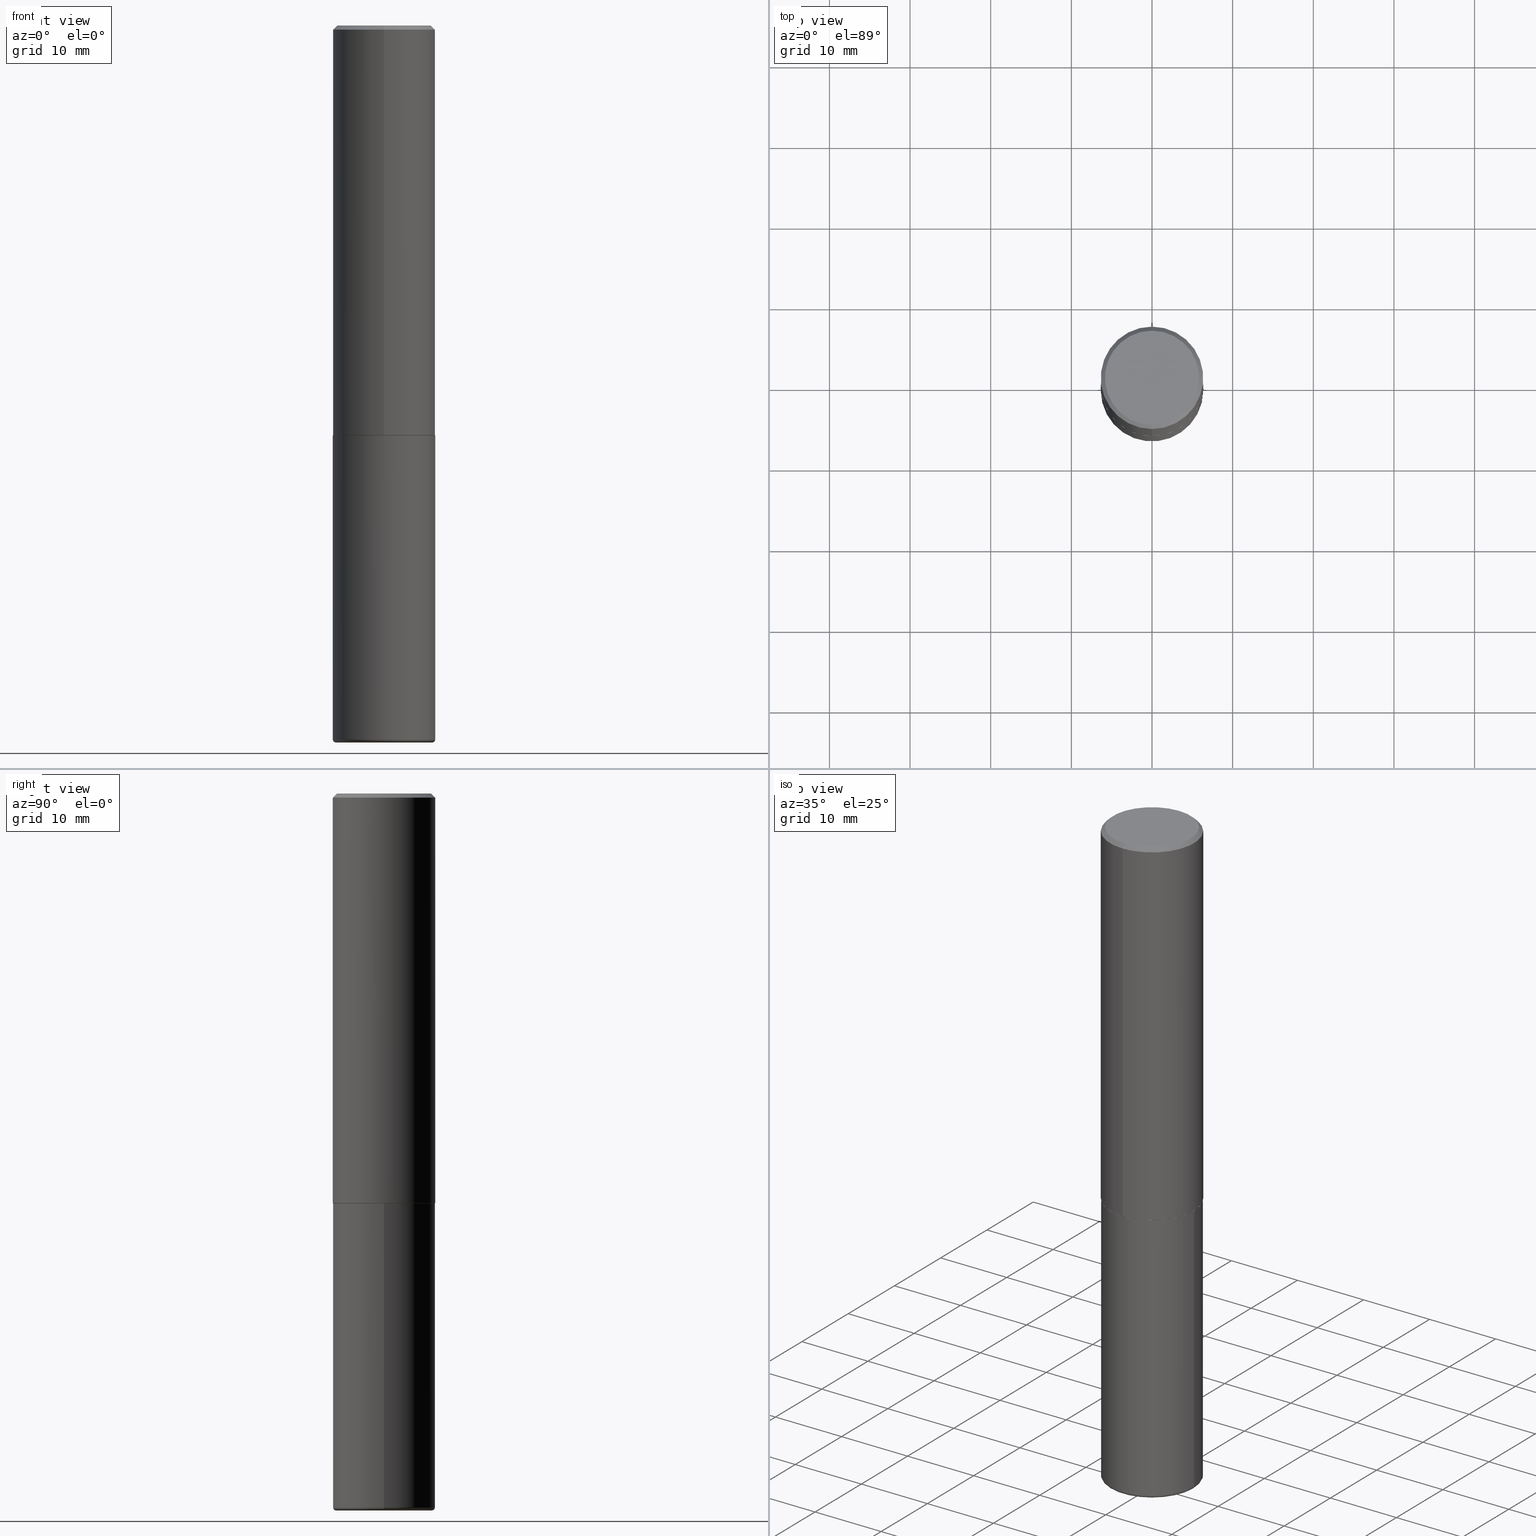
[diagram: canonical four-view strip — front | top / right | iso, engineering-drawing reading convention]
A machine part, canonical four-view strip (front | top / right | iso — engineering-drawing reading convention). The complete STEP part file that produces these views, byte-faithful:
ISO-10303-21;
HEADER;
FILE_DESCRIPTION (( 'STEP AP203' ),
    '1' );
FILE_NAME ('37525.STEP',
    '2024-03-02T03:19:09',
    ( '' ),
    ( '' ),
    'SwSTEP 2.0',
    'SolidWorks 2023',
    '' );
FILE_SCHEMA (( 'CONFIG_CONTROL_DESIGN' ));
ENDSEC;

DATA;
#1 = ADVANCED_FACE ( 'NONE', ( #61 ), #253, .T. ) ;
#2 = AXIS2_PLACEMENT_3D ( 'NONE', #230, #325, #35 ) ;
#3 = DIRECTION ( 'NONE',  ( -2.445737183286911680E-29, 3.491097007558327602E-15, 1.000000000000000000 ) ) ;
#4 = CYLINDRICAL_SURFACE ( 'NONE', #359, 0.2500000000000000000 ) ;
#5 = DIRECTION ( 'NONE',  ( 1.000000000000000000, -6.982962677686262766E-15, 0.000000000000000000 ) ) ;
#6 = DIRECTION ( 'NONE',  ( -6.982962677686266711E-15, -1.000000000000000000, 3.491097007558327996E-15 ) ) ;
#7 = VERTEX_POINT ( 'NONE', #361 ) ;
#8 = DATE_AND_TIME ( #343, #201 ) ;
#9 = LINE ( 'NONE', #385, #309 ) ;
#10 = LOCAL_TIME ( 22, 19, 9.000000000000000000, #53 ) ;
#11 = VECTOR ( 'NONE', #202, 39.37007874015748143 ) ;
#12 = VECTOR ( 'NONE', #369, 39.37007874015748143 ) ;
#13 = ORIENTED_EDGE ( 'NONE', *, *, #240, .F. ) ;
#14 = ADVANCED_FACE ( 'NONE', ( #299 ), #231, .T. ) ;
#15 = APPLICATION_PROTOCOL_DEFINITION ( 'international standard', 'config_control_design', 1994, #96 ) ;
#16 = DIRECTION ( 'NONE',  ( -6.982962677686265922E-15, -1.000000000000000000, 3.483106191921935554E-15 ) ) ;
#17 = ORIENTED_EDGE ( 'NONE', *, *, #108, .T. ) ;
#18 = PLANE ( 'NONE',  #105 ) ;
#19 = ORIENTED_EDGE ( 'NONE', *, *, #113, .T. ) ;
#20 = APPROVAL_PERSON_ORGANIZATION ( #118, #312, #144 ) ;
#21 =( NAMED_UNIT ( * ) PLANE_ANGLE_UNIT ( ) SI_UNIT ( $, .RADIAN. ) );
#22 = ORIENTED_EDGE ( 'NONE', *, *, #139, .F. ) ;
#23 = ORIENTED_EDGE ( 'NONE', *, *, #103, .F. ) ;
#24 = LENGTH_MEASURE_WITH_UNIT ( LENGTH_MEASURE( 0.02539999999999999897 ), #315 );
#25 = CARTESIAN_POINT ( 'NONE',  ( 1.675911042644703774E-15, 0.2299999999999999822, -8.286517828745257562E-16 ) ) ;
#26 = ORIENTED_EDGE ( 'NONE', *, *, #386, .T. ) ;
#27 = FACE_OUTER_BOUND ( 'NONE', #305, .T. ) ;
#28 = EDGE_LOOP ( 'NONE', ( #120, #82, #318, #346 ) ) ;
#29 = CC_DESIGN_PERSON_AND_ORGANIZATION_ASSIGNMENT ( #300, #264, ( #329 ) ) ;
#30 = AXIS2_PLACEMENT_3D ( 'NONE', #32, #40, #301 ) ;
#31 = PERSON_AND_ORGANIZATION ( #297, #164 ) ;
#32 = CARTESIAN_POINT ( 'NONE',  ( 8.522458789555200771E-29, -1.216781246586836108E-14, -3.484999999999999432 ) ) ;
#33 = FACE_OUTER_BOUND ( 'NONE', #286, .T. ) ;
#34 = EDGE_CURVE ( 'NONE', #376, #250, #302, .T. ) ;
#35 = DIRECTION ( 'NONE',  ( -6.982962677686265133E-15, -1.000000000000000000, 3.291383124896702687E-15 ) ) ;
#36 = DIRECTION ( 'NONE',  ( -2.445737183286911680E-29, 3.491097007558327602E-15, 1.000000000000000000 ) ) ;
#37 = CARTESIAN_POINT ( 'NONE',  ( 8.522458789555200771E-29, -1.216781246586836108E-14, -3.484999999999999432 ) ) ;
#38 = CIRCLE ( 'NONE', #74, 0.2299999999999999822 ) ;
#39 = FACE_OUTER_BOUND ( 'NONE', #28, .T. ) ;
#40 = DIRECTION ( 'NONE',  ( -2.445468806185136597E-29, 3.491481338843145583E-15, 1.000000000000000000 ) ) ;
#41 = CARTESIAN_POINT ( 'NONE',  ( 4.891474366573836672E-31, -6.982194015116674235E-17, -0.02000000000000005593 ) ) ;
#42 = PLANE ( 'NONE',  #56 ) ;
#43 = CIRCLE ( 'NONE', #2, 0.2489999999999999991 ) ;
#44 = ORIENTED_EDGE ( 'NONE', *, *, #169, .F. ) ;
#45 = APPROVAL_PERSON_ORGANIZATION ( #358, #371, #415 ) ;
#46 = ORIENTED_EDGE ( 'NONE', *, *, #103, .T. ) ;
#47 = CIRCLE ( 'NONE', #170, 0.2500000000000000000 ) ;
#48 = AXIS2_PLACEMENT_3D ( 'NONE', #37, #298, #5 ) ;
#49 = EDGE_CURVE ( 'NONE', #247, #376, #47, .T. ) ;
#50 = APPLICATION_PROTOCOL_DEFINITION ( 'international standard', 'config_control_design', 1994, #348 ) ;
#51 = PERSON_AND_ORGANIZATION ( #297, #164 ) ;
#52 = ORIENTED_EDGE ( 'NONE', *, *, #380, .T. ) ;
#53 = COORDINATED_UNIVERSAL_TIME_OFFSET ( 5, 0, .BEHIND. ) ;
#54 = VERTEX_POINT ( 'NONE', #418 ) ;
#55 = AXIS2_PLACEMENT_3D ( 'NONE', #259, #165, #6 ) ;
#56 = AXIS2_PLACEMENT_3D ( 'NONE', #174, #364, #75 ) ;
#57 = PLANE ( 'NONE',  #377 ) ;
#58 = ORIENTED_EDGE ( 'NONE', *, *, #380, .F. ) ;
#59 = PERSON_AND_ORGANIZATION_ROLE ( 'design_owner' ) ;
#60 = APPROVAL_STATUS ( 'not_yet_approved' ) ;
#61 = FACE_OUTER_BOUND ( 'NONE', #134, .T. ) ;
#62 = CARTESIAN_POINT ( 'NONE',  ( 4.889028629390535480E-29, -6.978702918109095527E-15, -1.998999999999999666 ) ) ;
#63 = ORIENTED_EDGE ( 'NONE', *, *, #113, .F. ) ;
#64 = VECTOR ( 'NONE', #260, 39.37007874015748143 ) ;
#65 = CC_DESIGN_APPROVAL ( #371, ( #329 ) ) ;
#66 = CARTESIAN_POINT ( 'NONE',  ( 4.890937612370272633E-29, -6.982962677686290376E-15, -1.999999999999999778 ) ) ;
#67 = EDGE_CURVE ( 'NONE', #223, #342, #199, .T. ) ;
#68 = DIRECTION ( 'NONE',  ( -6.982962677686265922E-15, -1.000000000000000000, 3.491097007558327207E-15 ) ) ;
#69 = CARTESIAN_POINT ( 'NONE',  ( 0.000000000000000000, 0.000000000000000000, 0.000000000000000000 ) ) ;
#70 = DIRECTION ( 'NONE',  ( -6.982962677686265133E-15, -1.000000000000000000, 3.291383124896702687E-15 ) ) ;
#71 = DIRECTION ( 'NONE',  ( 6.982962677686265922E-15, 1.000000000000000000, -3.483106191921935554E-15 ) ) ;
#72 = DATE_TIME_ROLE ( 'creation_date' ) ;
#73 = DIRECTION ( 'NONE',  ( -2.445737183286911680E-29, 3.491097007558327602E-15, 1.000000000000000000 ) ) ;
#74 = AXIS2_PLACEMENT_3D ( 'NONE', #185, #284, #367 ) ;
#75 = DIRECTION ( 'NONE',  ( 6.982962677686265922E-15, 1.000000000000000000, -3.491097007558327602E-15 ) ) ;
#76 = EDGE_CURVE ( 'NONE', #85, #342, #9, .T. ) ;
#77 = CIRCLE ( 'NONE', #267, 0.2500000000000002776 ) ;
#78 = EDGE_CURVE ( 'NONE', #413, #407, #43, .T. ) ;
#79 = CARTESIAN_POINT ( 'NONE',  ( 0.2499999999999999167, -1.391355313528992618E-14, -3.484999999999999432 ) ) ;
#80 = DIRECTION ( 'NONE',  ( 2.445737183286911680E-29, -3.491097007558327602E-15, -1.000000000000000000 ) ) ;
#81 = DIRECTION ( 'NONE',  ( -1.000000000000000000, 6.982962677686265922E-15, -4.876176775795935793E-29 ) ) ;
#82 = ORIENTED_EDGE ( 'NONE', *, *, #76, .T. ) ;
#83 = FACE_OUTER_BOUND ( 'NONE', #316, .T. ) ;
#84 = DIRECTION ( 'NONE',  ( -2.445737183286911400E-29, 3.491097007558327602E-15, 1.000000000000000000 ) ) ;
#85 = VERTEX_POINT ( 'NONE', #383 ) ;
#86 = COORDINATED_UNIVERSAL_TIME_OFFSET ( 5, 0, .BEHIND. ) ;
#87 = FACE_OUTER_BOUND ( 'NONE', #393, .T. ) ;
#88 = ORIENTED_EDGE ( 'NONE', *, *, #49, .F. ) ;
#89 = CONICAL_SURFACE ( 'NONE', #304, 0.2489999999999999991, 0.7853981633975507526 ) ;
#90 = CARTESIAN_POINT ( 'NONE',  ( -0.2349999999999999867, -1.049803703683212495E-14, -3.484999999999999432 ) ) ;
#91 = FACE_OUTER_BOUND ( 'NONE', #212, .T. ) ;
#92 = VERTEX_POINT ( 'NONE', #357 ) ;
#93 = ADVANCED_FACE ( 'NONE', ( #167 ), #102, .T. ) ;
#94 = ORIENTED_EDGE ( 'NONE', *, *, #108, .F. ) ;
#95 = ADVANCED_FACE ( 'NONE', ( #33 ), #4, .T. ) ;
#96 = APPLICATION_CONTEXT ( 'configuration controlled 3d designs of mechanical parts and assemblies' ) ;
#97 = DIRECTION ( 'NONE',  ( -2.445468806185136597E-29, 3.491481338843145583E-15, 1.000000000000000000 ) ) ;
#98 = LINE ( 'NONE', #226, #11 ) ;
#99 = AXIS2_PLACEMENT_3D ( 'NONE', #266, #127, #262 ) ;
#100 =( GEOMETRIC_REPRESENTATION_CONTEXT ( 3 ) GLOBAL_UNCERTAINTY_ASSIGNED_CONTEXT ( ( #128 ) ) GLOBAL_UNIT_ASSIGNED_CONTEXT ( ( #337, #21, #347 ) ) REPRESENTATION_CONTEXT ( 'NONE', 'WORKASPACE' ) );
#101 = CARTESIAN_POINT ( 'NONE',  ( 4.891474366573822799E-29, -6.982194015116654415E-15, -1.999999999999999778 ) ) ;
#102 = CYLINDRICAL_SURFACE ( 'NONE', #156, 0.2500000000000001110 ) ;
#103 = EDGE_CURVE ( 'NONE', #407, #413, #176, .T. ) ;
#104 = DIRECTION ( 'NONE',  ( -4.851104656540962697E-15, -0.7071067811865497932, -0.7071067811865451302 ) ) ;
#105 = AXIS2_PLACEMENT_3D ( 'NONE', #404, #213, #372 ) ;
#106 = CARTESIAN_POINT ( 'NONE',  ( 0.000000000000000000, 0.000000000000000000, 0.000000000000000000 ) ) ;
#107 = CC_DESIGN_DATE_AND_TIME_ASSIGNMENT ( #154, #72, ( #333 ) ) ;
#108 = EDGE_CURVE ( 'NONE', #85, #187, #368, .T. ) ;
#109 = ADVANCED_FACE ( 'NONE', ( #39 ), #235, .T. ) ;
#110 = CONICAL_SURFACE ( 'NONE', #234, 0.2500000000000000000, 0.7853981633974481680 ) ;
#111 = ADVANCED_BREP_SHAPE_REPRESENTATION ( '37525', ( #353, #220, #146 ), #100 ) ;
#112 = ORIENTED_EDGE ( 'NONE', *, *, #229, .F. ) ;
#113 = EDGE_CURVE ( 'NONE', #54, #184, #133, .T. ) ;
#114 = AXIS2_PLACEMENT_3D ( 'NONE', #294, #3, #387 ) ;
#115 = EDGE_LOOP ( 'NONE', ( #210, #52, #263, #314 ) ) ;
#116 = ORIENTED_EDGE ( 'NONE', *, *, #291, .F. ) ;
#117 = CARTESIAN_POINT ( 'NONE',  ( 4.891474366573836672E-31, -6.982194015116674235E-17, -0.02000000000000005593 ) ) ;
#118 = PERSON_AND_ORGANIZATION ( #297, #164 ) ;
#119 = EDGE_LOOP ( 'NONE', ( #13, #206 ) ) ;
#120 = ORIENTED_EDGE ( 'NONE', *, *, #362, .T. ) ;
#121 = CIRCLE ( 'NONE', #332, 0.01499999999999987454 ) ;
#122 = DESIGN_CONTEXT ( 'detailed design', #96, 'design' ) ;
#123 = APPROVAL_STATUS ( 'not_yet_approved' ) ;
#124 = CARTESIAN_POINT ( 'NONE',  ( 0.2500000000000000000, -8.728703347107857054E-15, -1.999999999999999778 ) ) ;
#125 = EDGE_CURVE ( 'NONE', #187, #184, #98, .T. ) ;
#126 = DIRECTION ( 'NONE',  ( 2.445737183286911680E-29, -3.491097007558327602E-15, -1.000000000000000000 ) ) ;
#127 = DIRECTION ( 'NONE',  ( -2.445737183286911680E-29, 3.491097007558327602E-15, 1.000000000000000000 ) ) ;
#128 = UNCERTAINTY_MEASURE_WITH_UNIT (LENGTH_MEASURE( 1.000000000000000082E-05 ), #337, 'distance_accuracy_value', 'NONE');
#129 = DIRECTION ( 'NONE',  ( 1.000000000000000000, -6.982962677686266711E-15, 4.883557194083112901E-29 ) ) ;
#130 = LOCAL_TIME ( 22, 19, 9.000000000000000000, #384 ) ;
#131 = DIRECTION ( 'NONE',  ( -2.445468806185136597E-29, 3.491481338843145583E-15, 1.000000000000000000 ) ) ;
#132 = FACE_OUTER_BOUND ( 'NONE', #153, .T. ) ;
#133 = LINE ( 'NONE', #360, #232 ) ;
#134 = EDGE_LOOP ( 'NONE', ( #63, #116, #255, #290 ) ) ;
#135 = DIRECTION ( 'NONE',  ( 1.000000000000000000, -6.982962677686266711E-15, 4.876176775795935793E-29 ) ) ;
#136 = PERSON_AND_ORGANIZATION_ROLE ( 'creator' ) ;
#137 = AXIS2_PLACEMENT_3D ( 'NONE', #41, #179, #16 ) ;
#138 = AXIS2_PLACEMENT_3D ( 'NONE', #140, #84, #287 ) ;
#139 = EDGE_CURVE ( 'NONE', #342, #184, #394, .T. ) ;
#140 = CARTESIAN_POINT ( 'NONE',  ( 4.891474366573822799E-29, -6.982194015116654415E-15, -1.999999999999999778 ) ) ;
#141 = EDGE_LOOP ( 'NONE', ( #352, #409 ) ) ;
#142 = CARTESIAN_POINT ( 'NONE',  ( -0.2500000000000000000, 1.776356839400250465E-15, -1.229733772563726445E-29 ) ) ;
#143 = DIRECTION ( 'NONE',  ( -2.445737183286911680E-29, 3.491097007558327602E-15, 1.000000000000000000 ) ) ;
#144 = APPROVAL_ROLE ( '' ) ;
#145 = AXIS2_PLACEMENT_3D ( 'NONE', #261, #328, #392 ) ;
#146 = AXIS2_PLACEMENT_3D ( 'NONE', #188, #397, #398 ) ;
#147 = EDGE_CURVE ( 'NONE', #184, #342, #390, .T. ) ;
#148 = EDGE_LOOP ( 'NONE', ( #381, #350, #373, #88 ) ) ;
#149 = APPROVAL_ROLE ( '' ) ;
#150 = DIRECTION ( 'NONE',  ( -6.982962677686266711E-15, -1.000000000000000000, 3.491481338843145583E-15 ) ) ;
#151 = ORIENTED_EDGE ( 'NONE', *, *, #306, .F. ) ;
#152 = DIRECTION ( 'NONE',  ( -2.445468806185136597E-29, 3.491481338843145583E-15, 1.000000000000000000 ) ) ;
#153 = EDGE_LOOP ( 'NONE', ( #112, #46, #400, #94 ) ) ;
#154 = DATE_AND_TIME ( #159, #242 ) ;
#155 = FACE_OUTER_BOUND ( 'NONE', #119, .T. ) ;
#156 = AXIS2_PLACEMENT_3D ( 'NONE', #69, #36, #162 ) ;
#157 = ORIENTED_EDGE ( 'NONE', *, *, #240, .T. ) ;
#158 = AXIS2_PLACEMENT_3D ( 'NONE', #209, #73, #68 ) ;
#159 = CALENDAR_DATE ( 2024, 1, 3 ) ;
#160 = CC_DESIGN_PERSON_AND_ORGANIZATION_ASSIGNMENT ( #31, #355, ( #333 ) ) ;
#161 = DIRECTION ( 'NONE',  ( -2.445468806185136597E-29, 3.491481338843145583E-15, 1.000000000000000000 ) ) ;
#162 = DIRECTION ( 'NONE',  ( -6.982962677686266711E-15, -1.000000000000000000, 3.491097007558327996E-15 ) ) ;
#163 = AXIS2_PLACEMENT_3D ( 'NONE', #193, #131, #135 ) ;
#164 = ORGANIZATION ( 'UNSPECIFIED', 'UNSPECIFIED', '' ) ;
#165 = DIRECTION ( 'NONE',  ( -2.445737183286911680E-29, 3.491097007558327602E-15, 1.000000000000000000 ) ) ;
#166 = ORIENTED_EDGE ( 'NONE', *, *, #229, .T. ) ;
#167 = FACE_OUTER_BOUND ( 'NONE', #244, .T. ) ;
#168 = EDGE_CURVE ( 'NONE', #7, #92, #192, .T. ) ;
#169 = EDGE_CURVE ( 'NONE', #92, #376, #323, .T. ) ;
#170 = AXIS2_PLACEMENT_3D ( 'NONE', #388, #293, #228 ) ;
#171 = APPROVAL_DATE_TIME ( #224, #371 ) ;
#172 = CC_DESIGN_APPROVAL ( #312, ( #205 ) ) ;
#173 = ORIENTED_EDGE ( 'NONE', *, *, #227, .F. ) ;
#174 = CARTESIAN_POINT ( 'NONE',  ( 1.606081415867841067E-15, 0.2299999999999999822, -8.158020473064706174E-16 ) ) ;
#175 = ADVANCED_FACE ( 'NONE', ( #87 ), #243, .F. ) ;
#176 = CIRCLE ( 'NONE', #99, 0.2489999999999999991 ) ;
#177 = AXIS2_PLACEMENT_3D ( 'NONE', #335, #382, #129 ) ;
#178 = CARTESIAN_POINT ( 'NONE',  ( 1.772804125721499659E-15, 0.2489999999999930325, -2.000000000000000444 ) ) ;
#179 = DIRECTION ( 'NONE',  ( -2.445737183286911680E-29, 3.491097007558327602E-15, 1.000000000000000000 ) ) ;
#180 = EDGE_LOOP ( 'NONE', ( #320, #166, #215, #173 ) ) ;
#181 = CALENDAR_DATE ( 2024, 1, 3 ) ;
#182 = DIRECTION ( 'NONE',  ( -2.445468806185136597E-29, 3.491481338843145583E-15, 1.000000000000000000 ) ) ;
#183 = CIRCLE ( 'NONE', #158, 0.2299999999999999822 ) ;
#184 = VERTEX_POINT ( 'NONE', #279 ) ;
#185 = CARTESIAN_POINT ( 'NONE',  ( 6.285415214839433991E-46, -8.971934677910720830E-32, -2.569947113611056727E-17 ) ) ;
#186 = DIRECTION ( 'NONE',  ( 2.438088387897960049E-29, -3.491481338843145188E-15, -1.000000000000000000 ) ) ;
#187 = VERTEX_POINT ( 'NONE', #217 ) ;
#188 = CARTESIAN_POINT ( 'NONE',  ( 0.000000000000000000, 0.000000000000000000, 0.000000000000000000 ) ) ;
#189 = COORDINATED_UNIVERSAL_TIME_OFFSET ( 5, 0, .BEHIND. ) ;
#190 = CARTESIAN_POINT ( 'NONE',  ( 4.891474366573836672E-31, -6.982194015116674235E-17, -0.02000000000000005593 ) ) ;
#191 = DIRECTION ( 'NONE',  ( -2.445468806185136597E-29, 3.491481338843145583E-15, 1.000000000000000000 ) ) ;
#192 = CIRCLE ( 'NONE', #241, 0.2349999999999999867 ) ;
#193 = CARTESIAN_POINT ( 'NONE',  ( 0.000000000000000000, 0.000000000000000000, 0.000000000000000000 ) ) ;
#194 = APPROVAL_PERSON_ORGANIZATION ( #51, #265, #149 ) ;
#195 = CC_DESIGN_PERSON_AND_ORGANIZATION_ASSIGNMENT ( #270, #136, ( #329 ) ) ;
#196 = DIRECTION ( 'NONE',  ( -2.445737183286911680E-29, 3.491097007558327602E-15, 1.000000000000000000 ) ) ;
#197 = PRODUCT ( '37525', '37525', '', ( #246 ) ) ;
#198 = CARTESIAN_POINT ( 'NONE',  ( 1.745740669421566875E-15, 0.2499999999999999167, -0.02000000000000092676 ) ) ;
#199 = LINE ( 'NONE', #198, #327 ) ;
#200 = CLOSED_SHELL ( 'NONE', ( #14, #272, #374, #95, #340, #236 ) ) ;
#201 = LOCAL_TIME ( 22, 19, 9.000000000000000000, #86 ) ;
#202 = DIRECTION ( 'NONE',  ( -2.445737183286911680E-29, 3.491097007558327602E-15, 1.000000000000000000 ) ) ;
#203 = ADVANCED_FACE ( 'NONE', ( #27 ), #110, .T. ) ;
#204 = DIRECTION ( 'NONE',  ( -6.982962677686265922E-15, -1.000000000000000000, 3.278217592397112312E-15 ) ) ;
#205 = SECURITY_CLASSIFICATION ( '', '', #275 ) ;
#206 = ORIENTED_EDGE ( 'NONE', *, *, #168, .F. ) ;
#207 = AXIS2_PLACEMENT_3D ( 'NONE', #117, #143, #341 ) ;
#208 = CARTESIAN_POINT ( 'NONE',  ( -1.738757706743831162E-15, -0.2490000000000069658, -1.999999999999998890 ) ) ;
#209 = CARTESIAN_POINT ( 'NONE',  ( 6.285415214839433991E-46, -8.971934677910720830E-32, -2.569947113611056727E-17 ) ) ;
#210 = ORIENTED_EDGE ( 'NONE', *, *, #330, .T. ) ;
#211 = CARTESIAN_POINT ( 'NONE',  ( 1.769251412042698169E-15, 0.2489999999999930325, -2.000000000000000444 ) ) ;
#212 = EDGE_LOOP ( 'NONE', ( #157, #26, #338, #44 ) ) ;
#213 = DIRECTION ( 'NONE',  ( 2.438088387897960049E-29, -3.491481338843145188E-15, -1.000000000000000000 ) ) ;
#214 = DIRECTION ( 'NONE',  ( 6.982962677686265922E-15, 1.000000000000000000, -3.483106191921935554E-15 ) ) ;
#215 = ORIENTED_EDGE ( 'NONE', *, *, #362, .F. ) ;
#216 = DIRECTION ( 'NONE',  ( -1.000000000000000000, 7.105427357601050768E-15, 0.000000000000000000 ) ) ;
#217 = CARTESIAN_POINT ( 'NONE',  ( -1.745740669421519543E-15, -0.2500000000000072164, -1.998999999999998778 ) ) ;
#218 = AXIS2_PLACEMENT_3D ( 'NONE', #317, #152, #285 ) ;
#219 = VERTEX_POINT ( 'NONE', #313 ) ;
#220 = MANIFOLD_SOLID_BREP ( 'Body-Move/Copy2[2]', #365 ) ;
#221 = ORIENTED_EDGE ( 'NONE', *, *, #49, .T. ) ;
#222 = CARTESIAN_POINT ( 'NONE',  ( 4.890937612370272633E-29, -6.982962677686290376E-15, -1.999999999999999778 ) ) ;
#223 = VERTEX_POINT ( 'NONE', #25 ) ;
#224 = DATE_AND_TIME ( #256, #130 ) ;
#225 = FACE_OUTER_BOUND ( 'NONE', #148, .T. ) ;
#226 = CARTESIAN_POINT ( 'NONE',  ( -1.745740669421567467E-15, -0.2500000000000001110, 8.727742518895823935E-16 ) ) ;
#227 = EDGE_CURVE ( 'NONE', #413, #187, #276, .T. ) ;
#228 = DIRECTION ( 'NONE',  ( 1.000000000000000000, -6.982962677686262766E-15, 0.000000000000000000 ) ) ;
#229 = EDGE_CURVE ( 'NONE', #407, #85, #345, .T. ) ;
#230 = CARTESIAN_POINT ( 'NONE',  ( 4.891474366573822799E-29, -6.982194015116654415E-15, -1.999999999999999778 ) ) ;
#231 = CYLINDRICAL_SURFACE ( 'NONE', #163, 0.2500000000000000000 ) ;
#232 = VECTOR ( 'NONE', #104, 39.37007874015748854 ) ;
#233 = CONICAL_SURFACE ( 'NONE', #114, 0.2489999999999999991, 0.7853981633975507526 ) ;
#234 = AXIS2_PLACEMENT_3D ( 'NONE', #412, #80, #214 ) ;
#235 = CYLINDRICAL_SURFACE ( 'NONE', #55, 0.2500000000000001110 ) ;
#236 = ADVANCED_FACE ( 'NONE', ( #155 ), #57, .T. ) ;
#237 = AXIS2_PLACEMENT_3D ( 'NONE', #190, #126, #71 ) ;
#238 = AXIS2_PLACEMENT_3D ( 'NONE', #66, #191, #257 ) ;
#239 = DIRECTION ( 'NONE',  ( 7.105427357601001859E-15, 1.000000000000000000, -3.491481338843145583E-15 ) ) ;
#240 = EDGE_CURVE ( 'NONE', #92, #7, #395, .T. ) ;
#241 = AXIS2_PLACEMENT_3D ( 'NONE', #319, #182, #375 ) ;
#242 = LOCAL_TIME ( 22, 19, 9.000000000000000000, #326 ) ;
#243 = PLANE ( 'NONE',  #138 ) ;
#244 = EDGE_LOOP ( 'NONE', ( #258, #17, #403, #22 ) ) ;
#245 = PERSON_AND_ORGANIZATION ( #297, #164 ) ;
#246 = MECHANICAL_CONTEXT ( 'NONE', #348, 'mechanical' ) ;
#247 = VERTEX_POINT ( 'NONE', #408 ) ;
#248 = CARTESIAN_POINT ( 'NONE',  ( 0.2349999999999999867, -1.380880869512463439E-14, -3.484999999999999432 ) ) ;
#249 = CALENDAR_DATE ( 2024, 1, 3 ) ;
#250 = VERTEX_POINT ( 'NONE', #124 ) ;
#251 = PERSON_AND_ORGANIZATION_ROLE ( 'classification_officer' ) ;
#252 = LINE ( 'NONE', #142, #334 ) ;
#253 = CONICAL_SURFACE ( 'NONE', #237, 0.2500000000000000000, 0.7853981633974481680 ) ;
#254 = VECTOR ( 'NONE', #378, 39.37007874015748143 ) ;
#255 = ORIENTED_EDGE ( 'NONE', *, *, #67, .T. ) ;
#256 = CALENDAR_DATE ( 2024, 1, 3 ) ;
#257 = DIRECTION ( 'NONE',  ( 1.000000000000000000, -6.982962677686266711E-15, 0.000000000000000000 ) ) ;
#258 = ORIENTED_EDGE ( 'NONE', *, *, #76, .F. ) ;
#259 = CARTESIAN_POINT ( 'NONE',  ( 0.000000000000000000, 0.000000000000000000, 0.000000000000000000 ) ) ;
#260 = DIRECTION ( 'NONE',  ( -2.445468806185136877E-29, 3.491481338843145188E-15, 1.000000000000000000 ) ) ;
#261 = CARTESIAN_POINT ( 'NONE',  ( 4.889028629390535480E-29, -6.978702918109095527E-15, -1.998999999999999666 ) ) ;
#262 = DIRECTION ( 'NONE',  ( -6.982962677686265133E-15, -1.000000000000000000, 3.291383124896702687E-15 ) ) ;
#263 = ORIENTED_EDGE ( 'NONE', *, *, #349, .F. ) ;
#264 = PERSON_AND_ORGANIZATION_ROLE ( 'design_supplier' ) ;
#265 = APPROVAL ( #339, 'UNSPECIFIED' ) ;
#266 = CARTESIAN_POINT ( 'NONE',  ( 4.891474366573822799E-29, -6.982194015116654415E-15, -1.999999999999999778 ) ) ;
#267 = AXIS2_PLACEMENT_3D ( 'NONE', #62, #196, #204 ) ;
#268 = CC_DESIGN_DATE_AND_TIME_ASSIGNMENT ( #8, #303, ( #205 ) ) ;
#269 = ORIENTED_EDGE ( 'NONE', *, *, #67, .F. ) ;
#270 = PERSON_AND_ORGANIZATION ( #297, #164 ) ;
#271 = CC_DESIGN_APPROVAL ( #265, ( #333 ) ) ;
#272 = ADVANCED_FACE ( 'NONE', ( #91 ), #410, .T. ) ;
#273 = ORIENTED_EDGE ( 'NONE', *, *, #306, .T. ) ;
#274 = DIMENSIONAL_EXPONENTS ( 1.000000000000000000, 0.000000000000000000, 0.000000000000000000, 0.000000000000000000, 0.000000000000000000, 0.000000000000000000, 0.000000000000000000 ) ;
#275 = SECURITY_CLASSIFICATION_LEVEL ( 'unclassified' ) ;
#276 = LINE ( 'NONE', #399, #12 ) ;
#277 = DIRECTION ( 'NONE',  ( -2.445468806185136877E-29, 3.491481338843145188E-15, 1.000000000000000000 ) ) ;
#278 = CIRCLE ( 'NONE', #48, 0.2500000000000000000 ) ;
#279 = CARTESIAN_POINT ( 'NONE',  ( -1.715124499442882299E-15, -0.2500000000000000555, -0.01999999999999918510 ) ) ;
#280 = ORIENTED_EDGE ( 'NONE', *, *, #34, .T. ) ;
#281 = DATE_AND_TIME ( #181, #10 ) ;
#282 = APPROVAL_DATE_TIME ( #288, #312 ) ;
#283 = ORIENTED_EDGE ( 'NONE', *, *, #417, .F. ) ;
#284 = DIRECTION ( 'NONE',  ( -2.445737183286911680E-29, 3.491097007558327602E-15, 1.000000000000000000 ) ) ;
#285 = DIRECTION ( 'NONE',  ( 1.000000000000000000, -6.982962677686271444E-15, 0.000000000000000000 ) ) ;
#286 = EDGE_LOOP ( 'NONE', ( #58, #221, #280, #151 ) ) ;
#287 = DIRECTION ( 'NONE',  ( -6.982962677686265922E-15, -1.000000000000000000, 3.491097007558327602E-15 ) ) ;
#288 = DATE_AND_TIME ( #249, #354 ) ;
#289 = CIRCLE ( 'NONE', #238, 0.2500000000000000000 ) ;
#290 = ORIENTED_EDGE ( 'NONE', *, *, #139, .T. ) ;
#291 = EDGE_CURVE ( 'NONE', #223, #54, #183, .T. ) ;
#292 = DIRECTION ( 'NONE',  ( 4.937700262164546464E-15, 0.7071067811865447972, -0.7071067811865500152 ) ) ;
#293 = DIRECTION ( 'NONE',  ( -2.445468806185136597E-29, 3.491481338843145583E-15, 1.000000000000000000 ) ) ;
#294 = CARTESIAN_POINT ( 'NONE',  ( 4.891474366573822799E-29, -6.982194015116654415E-15, -1.999999999999999778 ) ) ;
#295 = DIRECTION ( 'NONE',  ( -2.445737183286911680E-29, 3.491097007558327602E-15, 1.000000000000000000 ) ) ;
#296 = AXIS2_PLACEMENT_3D ( 'NONE', #248, #150, #405 ) ;
#297 = PERSON ( 'UNSPECIFIED', 'UNSPECIFIED', 'UNSPECIFIED', ('UNSPECIFIED'), ('UNSPECIFIED'), ('UNSPECIFIED') ) ;
#298 = DIRECTION ( 'NONE',  ( -2.445468806185136597E-29, 3.491481338843145583E-15, 1.000000000000000000 ) ) ;
#299 = FACE_OUTER_BOUND ( 'NONE', #115, .T. ) ;
#300 = PERSON_AND_ORGANIZATION ( #297, #164 ) ;
#301 = DIRECTION ( 'NONE',  ( 1.000000000000000000, -6.982962677686266711E-15, 4.883557194083112901E-29 ) ) ;
#302 = LINE ( 'NONE', #324, #64 ) ;
#303 = DATE_TIME_ROLE ( 'classification_date' ) ;
#304 = AXIS2_PLACEMENT_3D ( 'NONE', #101, #356, #70 ) ;
#305 = EDGE_LOOP ( 'NONE', ( #283, #19, #379, #269 ) ) ;
#306 = EDGE_CURVE ( 'NONE', #219, #250, #344, .T. ) ;
#307 = ADVANCED_FACE ( 'NONE', ( #416 ), #233, .T. ) ;
#308 = PRODUCT_RELATED_PRODUCT_CATEGORY ( 'detail', '', ( #197 ) ) ;
#309 = VECTOR ( 'NONE', #295, 39.37007874015748143 ) ;
#310 = PERSON_AND_ORGANIZATION ( #297, #164 ) ;
#311 = ORIENTED_EDGE ( 'NONE', *, *, #349, .T. ) ;
#312 = APPROVAL ( #60, 'UNSPECIFIED' ) ;
#313 = CARTESIAN_POINT ( 'NONE',  ( -0.2500000000000000000, -7.799030732377074474E-15, -1.999999999999999778 ) ) ;
#314 = ORIENTED_EDGE ( 'NONE', *, *, #34, .F. ) ;
#315 =( LENGTH_UNIT ( ) NAMED_UNIT ( * ) SI_UNIT ( $, .METRE. ) );
#316 = EDGE_LOOP ( 'NONE', ( #311, #273 ) ) ;
#317 = CARTESIAN_POINT ( 'NONE',  ( 8.559140821647976968E-29, -1.222018468595100619E-14, -3.499999999999999112 ) ) ;
#318 = ORIENTED_EDGE ( 'NONE', *, *, #147, .F. ) ;
#319 = CARTESIAN_POINT ( 'NONE',  ( 8.559140821647976968E-29, -1.222018468595100619E-14, -3.499999999999999112 ) ) ;
#320 = ORIENTED_EDGE ( 'NONE', *, *, #78, .T. ) ;
#321 = ADVANCED_FACE ( 'NONE', ( #132 ), #89, .T. ) ;
#322 = APPROVAL_DATE_TIME ( #281, #265 ) ;
#323 = CIRCLE ( 'NONE', #296, 0.01499999999999987454 ) ;
#324 = CARTESIAN_POINT ( 'NONE',  ( 0.2500000000000000000, -1.745740669421566678E-15, 1.219044193948983948E-29 ) ) ;
#325 = DIRECTION ( 'NONE',  ( -2.445737183286911680E-29, 3.491097007558327602E-15, 1.000000000000000000 ) ) ;
#326 = COORDINATED_UNIVERSAL_TIME_OFFSET ( 5, 0, .BEHIND. ) ;
#327 = VECTOR ( 'NONE', #292, 39.37007874015748854 ) ;
#328 = DIRECTION ( 'NONE',  ( -2.445737183286911680E-29, 3.491097007558327602E-15, 1.000000000000000000 ) ) ;
#329 = PRODUCT_DEFINITION_FORMATION_WITH_SPECIFIED_SOURCE ( 'ANY', '', #197, .NOT_KNOWN. ) ;
#330 = EDGE_CURVE ( 'NONE', #376, #247, #278, .T. ) ;
#331 = FACE_OUTER_BOUND ( 'NONE', #141, .T. ) ;
#332 = AXIS2_PLACEMENT_3D ( 'NONE', #90, #239, #216 ) ;
#333 = PRODUCT_DEFINITION ( 'UNKNOWN', '', #329, #122 ) ;
#334 = VECTOR ( 'NONE', #277, 39.37007874015748143 ) ;
#335 = CARTESIAN_POINT ( 'NONE',  ( 8.522458789555200771E-29, -1.216781246586836108E-14, -3.484999999999999432 ) ) ;
#336 = CC_DESIGN_PERSON_AND_ORGANIZATION_ASSIGNMENT ( #245, #251, ( #205 ) ) ;
#337 =( CONVERSION_BASED_UNIT ( 'INCH', #24 ) LENGTH_UNIT ( ) NAMED_UNIT ( #274 ) );
#338 = ORIENTED_EDGE ( 'NONE', *, *, #330, .F. ) ;
#339 = APPROVAL_STATUS ( 'not_yet_approved' ) ;
#340 = ADVANCED_FACE ( 'NONE', ( #225 ), #391, .T. ) ;
#341 = DIRECTION ( 'NONE',  ( -6.982962677686265922E-15, -1.000000000000000000, 3.483106191921935554E-15 ) ) ;
#342 = VERTEX_POINT ( 'NONE', #389 ) ;
#343 = CALENDAR_DATE ( 2024, 1, 3 ) ;
#344 = CIRCLE ( 'NONE', #366, 0.2500000000000000000 ) ;
#345 = LINE ( 'NONE', #211, #254 ) ;
#346 = ORIENTED_EDGE ( 'NONE', *, *, #125, .F. ) ;
#347 =( NAMED_UNIT ( * ) SI_UNIT ( $, .STERADIAN. ) SOLID_ANGLE_UNIT ( ) );
#348 = APPLICATION_CONTEXT ( 'configuration controlled 3d designs of mechanical parts and assemblies' ) ;
#349 = EDGE_CURVE ( 'NONE', #250, #219, #289, .T. ) ;
#350 = ORIENTED_EDGE ( 'NONE', *, *, #168, .T. ) ;
#351 = DIRECTION ( 'NONE',  ( 1.000000000000000000, -6.982962677686266711E-15, 0.000000000000000000 ) ) ;
#352 = ORIENTED_EDGE ( 'NONE', *, *, #291, .T. ) ;
#353 = MANIFOLD_SOLID_BREP ( 'Body-Move/Copy2[1]', #200 ) ;
#354 = LOCAL_TIME ( 22, 19, 9.000000000000000000, #189 ) ;
#355 = PERSON_AND_ORGANIZATION_ROLE ( 'creator' ) ;
#356 = DIRECTION ( 'NONE',  ( -2.445737183286911680E-29, 3.491097007558327602E-15, 1.000000000000000000 ) ) ;
#357 = CARTESIAN_POINT ( 'NONE',  ( 0.2349999999999999867, -1.386118091520728107E-14, -3.499999999999999112 ) ) ;
#358 = PERSON_AND_ORGANIZATION ( #297, #164 ) ;
#359 = AXIS2_PLACEMENT_3D ( 'NONE', #106, #161, #414 ) ;
#360 = CARTESIAN_POINT ( 'NONE',  ( -1.715124499442882299E-15, -0.2500000000000000555, -0.01999999999999918510 ) ) ;
#361 = CARTESIAN_POINT ( 'NONE',  ( -0.2349999999999999867, -1.047093244169144191E-14, -3.499999999999999112 ) ) ;
#362 = EDGE_CURVE ( 'NONE', #187, #85, #77, .T. ) ;
#363 = ADVANCED_FACE ( 'NONE', ( #331 ), #42, .F. ) ;
#364 = DIRECTION ( 'NONE',  ( 2.445737183286911400E-29, -3.491097007558327602E-15, -1.000000000000000000 ) ) ;
#365 = CLOSED_SHELL ( 'NONE', ( #307, #109, #203, #1, #93, #321, #175, #363 ) ) ;
#366 = AXIS2_PLACEMENT_3D ( 'NONE', #222, #97, #351 ) ;
#367 = DIRECTION ( 'NONE',  ( -6.982962677686265922E-15, -1.000000000000000000, 3.491097007558327207E-15 ) ) ;
#368 = CIRCLE ( 'NONE', #145, 0.2500000000000002776 ) ;
#369 = DIRECTION ( 'NONE',  ( -4.937700262165053702E-15, -0.7071067811866175168, 0.7071067811864775177 ) ) ;
#370 = ORIENTED_EDGE ( 'NONE', *, *, #78, .F. ) ;
#371 = APPROVAL ( #123, 'UNSPECIFIED' ) ;
#372 = DIRECTION ( 'NONE',  ( -1.000000000000000000, 6.982962677686265922E-15, -4.876176775795935793E-29 ) ) ;
#373 = ORIENTED_EDGE ( 'NONE', *, *, #169, .T. ) ;
#374 = ADVANCED_FACE ( 'NONE', ( #83 ), #18, .F. ) ;
#375 = DIRECTION ( 'NONE',  ( 1.000000000000000000, -6.982962677686271444E-15, 0.000000000000000000 ) ) ;
#376 = VERTEX_POINT ( 'NONE', #79 ) ;
#377 = AXIS2_PLACEMENT_3D ( 'NONE', #402, #186, #81 ) ;
#378 = DIRECTION ( 'NONE',  ( 5.024295867788576727E-15, 0.7071067811866224018, 0.7071067811864726327 ) ) ;
#379 = ORIENTED_EDGE ( 'NONE', *, *, #147, .T. ) ;
#380 = EDGE_CURVE ( 'NONE', #247, #219, #252, .T. ) ;
#381 = ORIENTED_EDGE ( 'NONE', *, *, #386, .F. ) ;
#382 = DIRECTION ( 'NONE',  ( -2.445468806185136597E-29, 3.491481338843145583E-15, 1.000000000000000000 ) ) ;
#383 = CARTESIAN_POINT ( 'NONE',  ( 1.776356839400276103E-15, 0.2499999999999933109, -1.999000000000000554 ) ) ;
#384 = COORDINATED_UNIVERSAL_TIME_OFFSET ( 5, 0, .BEHIND. ) ;
#385 = CARTESIAN_POINT ( 'NONE',  ( 1.776356839400251254E-15, 0.2500000000000001110, -8.727742518895823935E-16 ) ) ;
#386 = EDGE_CURVE ( 'NONE', #7, #247, #121, .T. ) ;
#387 = DIRECTION ( 'NONE',  ( -6.982962677686265133E-15, -1.000000000000000000, 3.291383124896702687E-15 ) ) ;
#388 = CARTESIAN_POINT ( 'NONE',  ( 8.522458789555200771E-29, -1.216781246586836108E-14, -3.484999999999999432 ) ) ;
#389 = CARTESIAN_POINT ( 'NONE',  ( 1.745740669421566875E-15, 0.2499999999999999167, -0.02000000000000092676 ) ) ;
#390 = CIRCLE ( 'NONE', #207, 0.2500000000000000000 ) ;
#391 = TOROIDAL_SURFACE ( 'NONE', #30, 0.2349999999999999867, 0.01499999999999985720 ) ;
#392 = DIRECTION ( 'NONE',  ( -6.982962677686265922E-15, -1.000000000000000000, 3.278217592397112312E-15 ) ) ;
#393 = EDGE_LOOP ( 'NONE', ( #370, #23 ) ) ;
#394 = CIRCLE ( 'NONE', #137, 0.2500000000000000000 ) ;
#395 = CIRCLE ( 'NONE', #218, 0.2349999999999999867 ) ;
#396 = PRODUCT_DEFINITION_SHAPE ( 'NONE', 'NONE',  #333 ) ;
#397 = DIRECTION ( 'NONE',  ( 0.000000000000000000, 0.000000000000000000, 1.000000000000000000 ) ) ;
#398 = DIRECTION ( 'NONE',  ( 1.000000000000000000, 0.000000000000000000, 0.000000000000000000 ) ) ;
#399 = CARTESIAN_POINT ( 'NONE',  ( -1.738757706743831162E-15, -0.2490000000000069658, -1.999999999999998890 ) ) ;
#400 = ORIENTED_EDGE ( 'NONE', *, *, #227, .T. ) ;
#401 = CC_DESIGN_SECURITY_CLASSIFICATION ( #205, ( #329 ) ) ;
#402 = CARTESIAN_POINT ( 'NONE',  ( 1.424147052658787775E-28, -4.082765130355326584E-15, -3.499999999999999112 ) ) ;
#403 = ORIENTED_EDGE ( 'NONE', *, *, #125, .T. ) ;
#404 = CARTESIAN_POINT ( 'NONE',  ( 4.890937612370272633E-29, -6.982962677686290376E-15, -1.999999999999999778 ) ) ;
#405 = DIRECTION ( 'NONE',  ( 1.000000000000000000, -6.982962677686196502E-15, 0.000000000000000000 ) ) ;
#406 = SHAPE_DEFINITION_REPRESENTATION ( #396, #111 ) ;
#407 = VERTEX_POINT ( 'NONE', #178 ) ;
#408 = CARTESIAN_POINT ( 'NONE',  ( -0.2499999999999999167, -1.039145562646811219E-14, -3.484999999999999432 ) ) ;
#409 = ORIENTED_EDGE ( 'NONE', *, *, #417, .T. ) ;
#410 = TOROIDAL_SURFACE ( 'NONE', #177, 0.2349999999999999867, 0.01499999999999985720 ) ;
#411 = CC_DESIGN_PERSON_AND_ORGANIZATION_ASSIGNMENT ( #310, #59, ( #197 ) ) ;
#412 = CARTESIAN_POINT ( 'NONE',  ( 4.891474366573836672E-31, -6.982194015116674235E-17, -0.02000000000000005593 ) ) ;
#413 = VERTEX_POINT ( 'NONE', #208 ) ;
#414 = DIRECTION ( 'NONE',  ( 1.000000000000000000, -6.982962677686266711E-15, 4.876176775795935793E-29 ) ) ;
#415 = APPROVAL_ROLE ( '' ) ;
#416 = FACE_OUTER_BOUND ( 'NONE', #180, .T. ) ;
#417 = EDGE_CURVE ( 'NONE', #54, #223, #38, .T. ) ;
#418 = CARTESIAN_POINT ( 'NONE',  ( -1.646519519465166968E-15, -0.2299999999999999822, 7.772528406023046093E-16 ) ) ;
ENDSEC;
END-ISO-10303-21;
